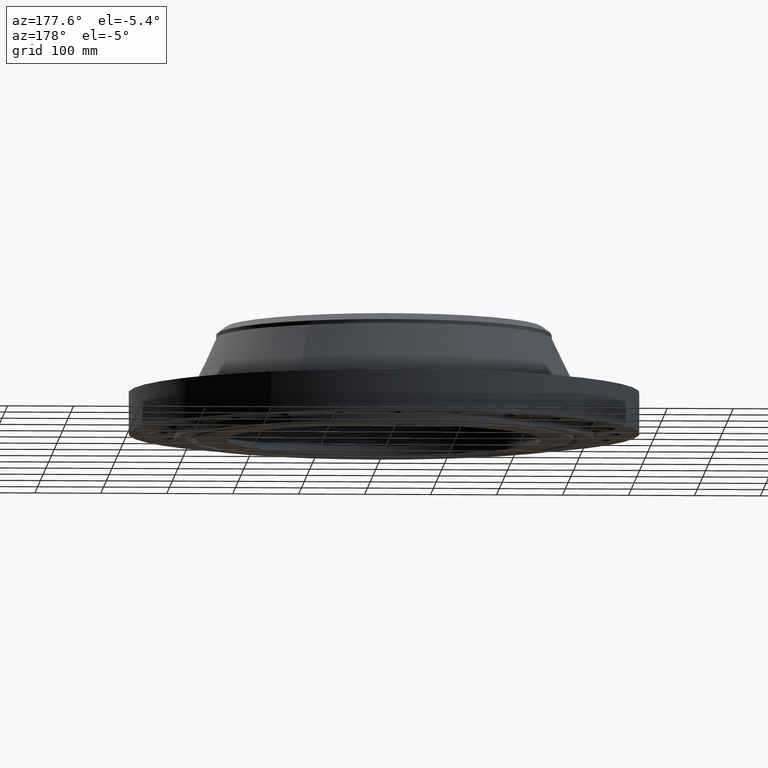
[diagram: clean part render]
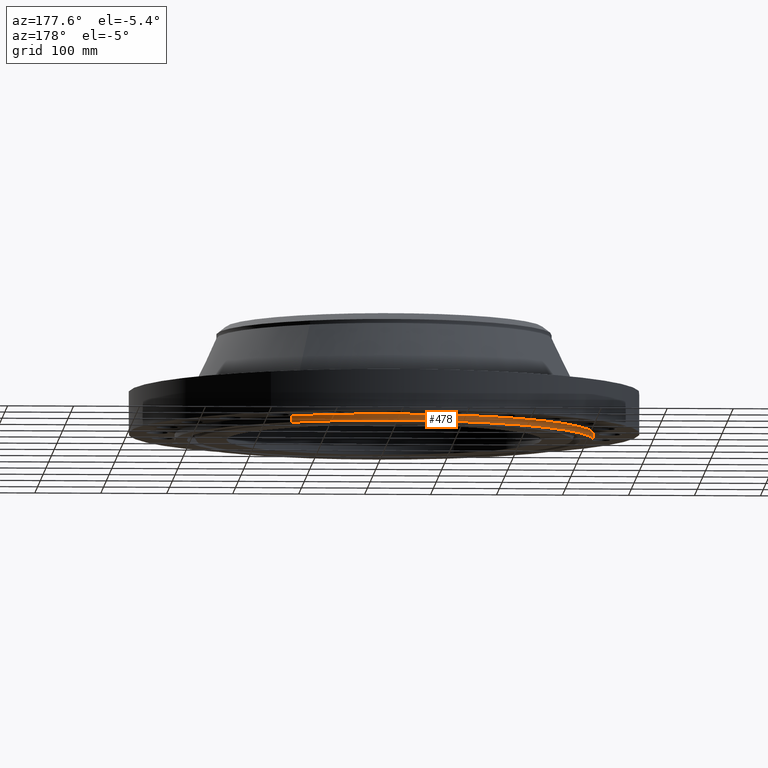
[diagram: same view with one face highlighted and labeled with its STEP entity id]
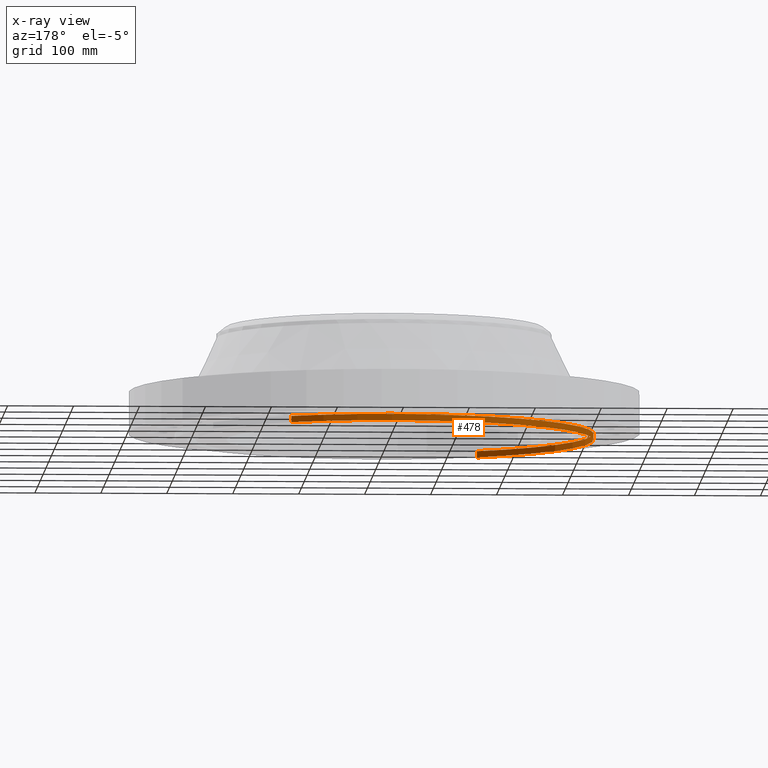
[diagram: x-ray of the same camera — body ghosted, the highlighted face saturated]
A machine part, auxiliary view. The second image highlights one B-rep face of the part: STEP entity #478.
The next image is the same camera in x-ray: the body ghosted, the highlighted face saturated — about 0% of this face is hidden behind the body in this view.
In plain terms, the highlighted cylindrical surface (partial cylindrical patch) has radius 317.5 mm, axis along (0, 0, -1).
Its self-contained STEP definition (entity closure, byte-faithful):
#442=AXIS2_PLACEMENT_3D('Cylinder Axis2P3D',#439,#440,#441) ;
#446=AXIS2_PLACEMENT_3D('Circle Axis2P3D',#444,#445,$) ;
#462=AXIS2_PLACEMENT_3D('Circle Axis2P3D',#460,#461,$) ;
#439=CARTESIAN_POINT('Axis2P3D Location',(0.,0.,2.97250000001)) ;
#444=CARTESIAN_POINT('Axis2P3D Location',(0.,0.,-0.375000000002)) ;
#448=CARTESIAN_POINT('Vertex',(-5.99281923258,-10.9697820237,-0.375000000002)) ;
#450=CARTESIAN_POINT('Vertex',(5.99281923258,10.9697820237,-0.375000000002)) ;
#453=CARTESIAN_POINT('Line Origine',(-5.99281923258,-10.9697820237,-0.187500000001)) ;
#457=CARTESIAN_POINT('Vertex',(-5.99281923258,-10.9697820237,1.67844740731E-015)) ;
#460=CARTESIAN_POINT('Axis2P3D Location',(0.,0.,1.67844740731E-015)) ;
#464=CARTESIAN_POINT('Vertex',(5.99281923258,10.9697820237,1.67844740731E-015)) ;
#467=CARTESIAN_POINT('Line Origine',(5.99281923258,10.9697820237,-0.187500000001)) ;
#440=DIRECTION('Axis2P3D Direction',(0.,0.,-0.0393700787402)) ;
#441=DIRECTION('Axis2P3D XDirection',(0.0188750212049,0.0345504945626,0.)) ;
#445=DIRECTION('Axis2P3D Direction',(0.,0.,-0.0393700787402)) ;
#454=DIRECTION('Vector Direction',(0.,0.,-0.0393700787402)) ;
#461=DIRECTION('Axis2P3D Direction',(0.,0.,-0.0393700787402)) ;
#468=DIRECTION('Vector Direction',(0.,0.,-0.0393700787402)) ;
#455=VECTOR('Line Direction',#454,0.0393700787402) ;
#469=VECTOR('Line Direction',#468,0.0393700787402) ;
#473=ORIENTED_EDGE('',*,*,#452,.F.) ;
#474=ORIENTED_EDGE('',*,*,#459,.T.) ;
#475=ORIENTED_EDGE('',*,*,#466,.T.) ;
#476=ORIENTED_EDGE('',*,*,#471,.F.) ;
#478=ADVANCED_FACE('PartBody',(#477),#443,.T.) ;
#447=CIRCLE('generated circle',#446,12.5000000001) ;
#463=CIRCLE('generated circle',#462,12.5000000001) ;
#443=CYLINDRICAL_SURFACE('generated cylinder',#442,12.5000000001) ;
#452=EDGE_CURVE('',#449,#451,#447,.T.) ;
#459=EDGE_CURVE('',#449,#458,#456,.F.) ;
#466=EDGE_CURVE('',#458,#465,#463,.T.) ;
#471=EDGE_CURVE('',#451,#465,#470,.F.) ;
#472=EDGE_LOOP('',(#473,#474,#475,#476)) ;
#477=FACE_OUTER_BOUND('',#472,.T.) ;
#456=LINE('Line',#453,#455) ;
#470=LINE('Line',#467,#469) ;
#449=VERTEX_POINT('',#448) ;
#451=VERTEX_POINT('',#450) ;
#458=VERTEX_POINT('',#457) ;
#465=VERTEX_POINT('',#464) ;